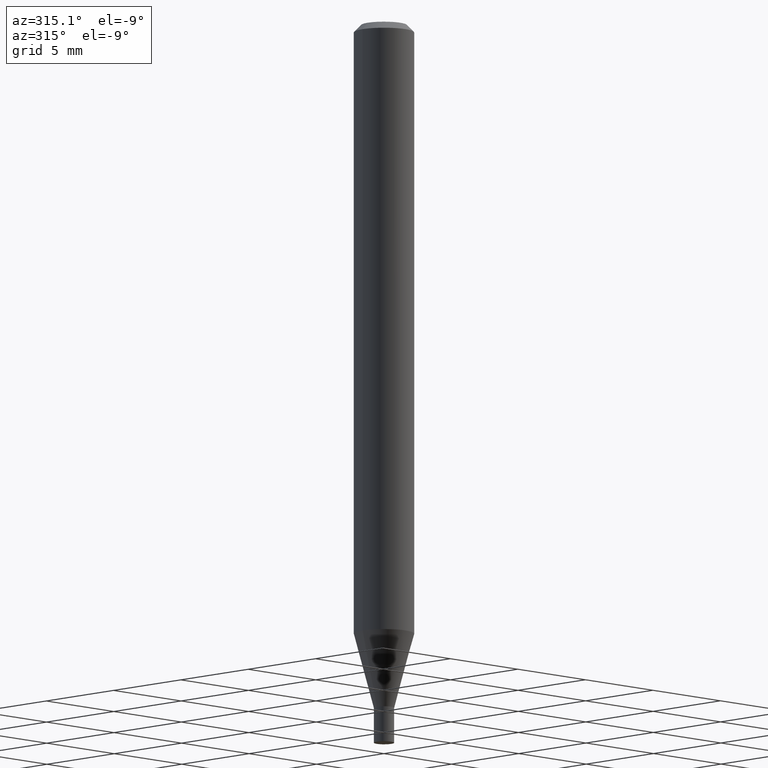
[diagram: clean part render]
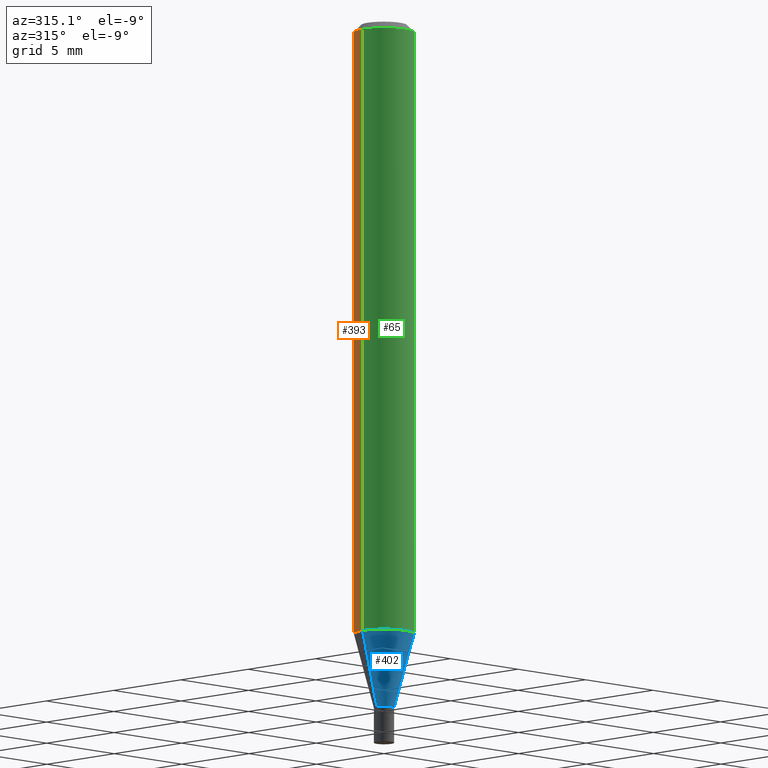
[diagram: same view with three faces highlighted in distinct colors, each labeled with its STEP entity id]
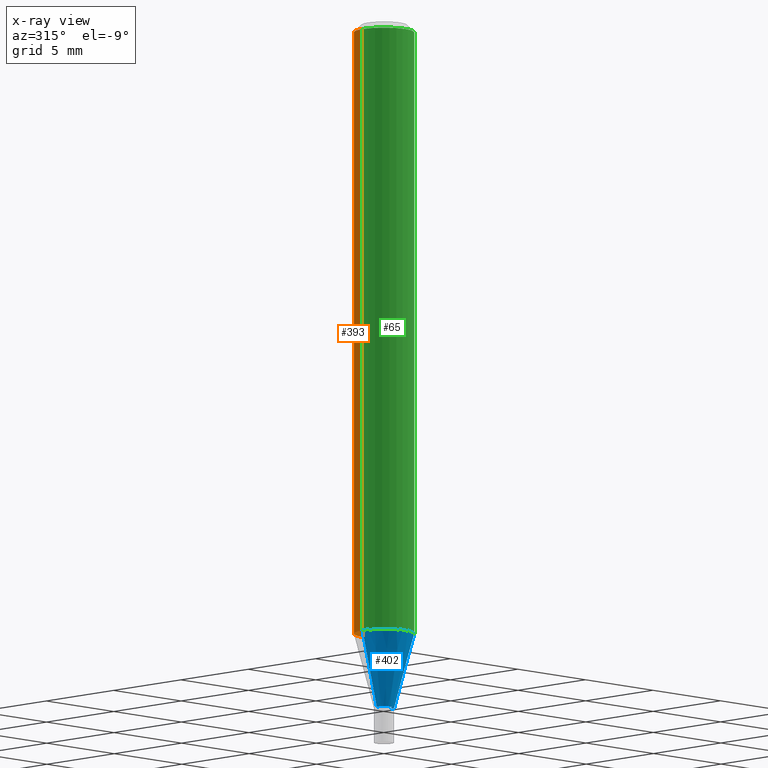
[diagram: x-ray of the same camera — body ghosted, the three highlighted faces saturated]
A machine part, auxiliary view with three faces highlighted in distinct colors.
The next image is the same camera in x-ray (body ghosted, the three faces saturated) — at least one of them is partly hidden behind the body in this view.
Their STEP definitions:

[orange] entity #393 — the highlighted cylindrical surface (edge-blend (fillet) strip) has radius 1.5875 mm, axis along (-0, 0, 1).
#30 = ORIENTED_EDGE ( 'NONE', *, *, #387, .T. ) ;
#49 = EDGE_CURVE ( 'NONE', #377, #144, #199, .T. ) ;
#68 = AXIS2_PLACEMENT_3D ( 'NONE', #417, #153, #302 ) ;
#89 = DIRECTION ( 'NONE',  ( 1.000000000000000000, -6.982962677686262766E-15, 0.000000000000000000 ) ) ;
#111 = DIRECTION ( 'NONE',  ( -2.445468806185136877E-29, 3.491481338843145188E-15, 1.000000000000000000 ) ) ;
#136 = CARTESIAN_POINT ( 'NONE',  ( 0.06250000000000000000, -4.364351673553916694E-16, 3.047610484872459871E-30 ) ) ;
#144 = VERTEX_POINT ( 'NONE', #446 ) ;
#153 = DIRECTION ( 'NONE',  ( -2.445468806185136597E-29, 3.491481338843145583E-15, 1.000000000000000000 ) ) ;
#157 = FACE_OUTER_BOUND ( 'NONE', #394, .T. ) ;
#160 = VERTEX_POINT ( 'NONE', #205 ) ;
#162 = DIRECTION ( 'NONE',  ( -2.445468806185136877E-29, 3.491481338843145188E-15, 1.000000000000000000 ) ) ;
#170 = ORIENTED_EDGE ( 'NONE', *, *, #235, .F. ) ;
#186 = VERTEX_POINT ( 'NONE', #202 ) ;
#190 = CYLINDRICAL_SURFACE ( 'NONE', #269, 0.06250000000000000000 ) ;
#192 = DIRECTION ( 'NONE',  ( -2.445468806185136597E-29, 3.491481338843145583E-15, 1.000000000000000000 ) ) ;
#199 = LINE ( 'NONE', #343, #406 ) ;
#202 = CARTESIAN_POINT ( 'NONE',  ( 0.06250000000000000000, -4.888073874380388472E-16, -0.01499999999999999944 ) ) ;
#203 = AXIS2_PLACEMENT_3D ( 'NONE', #264, #225, #89 ) ;
#204 = CIRCLE ( 'NONE', #68, 0.06250000000000000000 ) ;
#205 = CARTESIAN_POINT ( 'NONE',  ( 0.06250000000000000000, -4.878018029249550992E-15, -1.272119891485891996 ) ) ;
#225 = DIRECTION ( 'NONE',  ( -2.445468806185136597E-29, 3.491481338843145583E-15, 1.000000000000000000 ) ) ;
#230 = CARTESIAN_POINT ( 'NONE',  ( 0.000000000000000000, 0.000000000000000000, 0.000000000000000000 ) ) ;
#235 = EDGE_CURVE ( 'NONE', #160, #186, #407, .T. ) ;
#249 = CIRCLE ( 'NONE', #203, 0.06250000000000000000 ) ;
#264 = CARTESIAN_POINT ( 'NONE',  ( 3.110929512356370285E-29, -4.441582861894159323E-15, -1.272119891485891996 ) ) ;
#269 = AXIS2_PLACEMENT_3D ( 'NONE', #230, #192, #414 ) ;
#299 = CARTESIAN_POINT ( 'NONE',  ( -0.06250000000000000000, -3.997493652044096706E-15, -1.272119891485891996 ) ) ;
#301 = ORIENTED_EDGE ( 'NONE', *, *, #49, .T. ) ;
#302 = DIRECTION ( 'NONE',  ( 1.000000000000000000, -6.982962677686266711E-15, 0.000000000000000000 ) ) ;
#343 = CARTESIAN_POINT ( 'NONE',  ( -0.06250000000000000000, 4.440892098500626162E-16, -3.074334431409316114E-30 ) ) ;
#371 = VECTOR ( 'NONE', #111, 39.37007874015748143 ) ;
#377 = VERTEX_POINT ( 'NONE', #299 ) ;
#387 = EDGE_CURVE ( 'NONE', #160, #377, #249, .T. ) ;
#393 = ADVANCED_FACE ( 'NONE', ( #157 ), #190, .T. ) ;
#394 = EDGE_LOOP ( 'NONE', ( #30, #301, #399, #170 ) ) ;
#399 = ORIENTED_EDGE ( 'NONE', *, *, #452, .F. ) ;
#406 = VECTOR ( 'NONE', #162, 39.37007874015748143 ) ;
#407 = LINE ( 'NONE', #136, #371 ) ;
#414 = DIRECTION ( 'NONE',  ( 1.000000000000000000, -6.982962677686266711E-15, 4.876176775795935793E-29 ) ) ;
#417 = CARTESIAN_POINT ( 'NONE',  ( 3.668203209277705088E-31, -5.237222008264718399E-17, -0.01499999999999999944 ) ) ;
#446 = CARTESIAN_POINT ( 'NONE',  ( -0.06250000000000000000, -1.802888331138340782E-15, -0.01499999999999999944 ) ) ;
#452 = EDGE_CURVE ( 'NONE', #186, #144, #204, .T. ) ;

[blue] entity #402 — the highlighted conical surface has half-angle 15 deg.
#4 = ORIENTED_EDGE ( 'NONE', *, *, #279, .F. ) ;
#5 = CARTESIAN_POINT ( 'NONE',  ( -0.02099999999999992498, -4.415311774031822362E-15, -1.427000000000000046 ) ) ;
#6 = AXIS2_PLACEMENT_3D ( 'NONE', #375, #384, #119 ) ;
#11 = VERTEX_POINT ( 'NONE', #418 ) ;
#16 = LINE ( 'NONE', #212, #347 ) ;
#28 = EDGE_CURVE ( 'NONE', #223, #11, #66, .T. ) ;
#34 = CARTESIAN_POINT ( 'NONE',  ( 3.489683986426190072E-29, -4.982343870529169189E-15, -1.427000000000000046 ) ) ;
#40 = LINE ( 'NONE', #317, #140 ) ;
#66 = CIRCLE ( 'NONE', #165, 0.02099999999999992498 ) ;
#85 = FACE_OUTER_BOUND ( 'NONE', #125, .T. ) ;
#94 = CONICAL_SURFACE ( 'NONE', #6, 0.02099999999999992498, 0.2617993877991504625 ) ;
#95 = AXIS2_PLACEMENT_3D ( 'NONE', #313, #169, #437 ) ;
#99 = ORIENTED_EDGE ( 'NONE', *, *, #216, .T. ) ;
#119 = DIRECTION ( 'NONE',  ( 1.000000000000000000, -6.982962677686265922E-15, 0.000000000000000000 ) ) ;
#125 = EDGE_LOOP ( 'NONE', ( #4, #431, #99, #187 ) ) ;
#140 = VECTOR ( 'NONE', #277, 39.37007874015748854 ) ;
#160 = VERTEX_POINT ( 'NONE', #205 ) ;
#161 = EDGE_CURVE ( 'NONE', #377, #160, #318, .T. ) ;
#165 = AXIS2_PLACEMENT_3D ( 'NONE', #34, #352, #461 ) ;
#169 = DIRECTION ( 'NONE',  ( -2.445468806185136597E-29, 3.491481338843145583E-15, 1.000000000000000000 ) ) ;
#187 = ORIENTED_EDGE ( 'NONE', *, *, #161, .F. ) ;
#205 = CARTESIAN_POINT ( 'NONE',  ( 0.06250000000000000000, -4.878018029249550992E-15, -1.272119891485891996 ) ) ;
#212 = CARTESIAN_POINT ( 'NONE',  ( -0.02099999999999992498, -4.833129896019548018E-15, -1.427000000000000046 ) ) ;
#216 = EDGE_CURVE ( 'NONE', #11, #160, #40, .T. ) ;
#223 = VERTEX_POINT ( 'NONE', #5 ) ;
#277 = DIRECTION ( 'NONE',  ( 0.2588190451025217387, 1.565188264969619207E-15, 0.9659258262890679791 ) ) ;
#279 = EDGE_CURVE ( 'NONE', #223, #377, #16, .T. ) ;
#290 = DIRECTION ( 'NONE',  ( -0.2588190451025217387, 5.211531920934551042E-15, 0.9659258262890679791 ) ) ;
#299 = CARTESIAN_POINT ( 'NONE',  ( -0.06250000000000000000, -3.997493652044096706E-15, -1.272119891485891996 ) ) ;
#313 = CARTESIAN_POINT ( 'NONE',  ( 3.110929512356370285E-29, -4.441582861894159323E-15, -1.272119891485891996 ) ) ;
#317 = CARTESIAN_POINT ( 'NONE',  ( 0.02099999999999992498, -5.128986086760580222E-15, -1.427000000000000046 ) ) ;
#318 = CIRCLE ( 'NONE', #95, 0.06250000000000000000 ) ;
#347 = VECTOR ( 'NONE', #290, 39.37007874015748854 ) ;
#352 = DIRECTION ( 'NONE',  ( -2.445468806185136597E-29, 3.491481338843145583E-15, 1.000000000000000000 ) ) ;
#375 = CARTESIAN_POINT ( 'NONE',  ( 3.489683986426190072E-29, -4.982343870529169189E-15, -1.427000000000000046 ) ) ;
#377 = VERTEX_POINT ( 'NONE', #299 ) ;
#384 = DIRECTION ( 'NONE',  ( -2.445468806185136597E-29, 3.491481338843145583E-15, 1.000000000000000000 ) ) ;
#402 = ADVANCED_FACE ( 'NONE', ( #85 ), #94, .T. ) ;
#418 = CARTESIAN_POINT ( 'NONE',  ( 0.02099999999999992498, -5.128986086760580222E-15, -1.427000000000000046 ) ) ;
#431 = ORIENTED_EDGE ( 'NONE', *, *, #28, .T. ) ;
#437 = DIRECTION ( 'NONE',  ( 1.000000000000000000, -6.982962677686262766E-15, 0.000000000000000000 ) ) ;
#461 = DIRECTION ( 'NONE',  ( 1.000000000000000000, -6.982962677686265922E-15, 0.000000000000000000 ) ) ;

[green] entity #65 — the highlighted cylindrical surface (edge-blend (fillet) strip) has radius 1.5875 mm, axis along (-0, 0, 1).
#39 = DIRECTION ( 'NONE',  ( -2.445468806185136597E-29, 3.491481338843145583E-15, 1.000000000000000000 ) ) ;
#49 = EDGE_CURVE ( 'NONE', #377, #144, #199, .T. ) ;
#57 = EDGE_LOOP ( 'NONE', ( #152, #79, #378, #217 ) ) ;
#64 = CARTESIAN_POINT ( 'NONE',  ( 0.000000000000000000, 0.000000000000000000, 0.000000000000000000 ) ) ;
#65 = ADVANCED_FACE ( 'NONE', ( #460 ), #97, .T. ) ;
#79 = ORIENTED_EDGE ( 'NONE', *, *, #161, .T. ) ;
#82 = AXIS2_PLACEMENT_3D ( 'NONE', #64, #39, #245 ) ;
#95 = AXIS2_PLACEMENT_3D ( 'NONE', #313, #169, #437 ) ;
#97 = CYLINDRICAL_SURFACE ( 'NONE', #82, 0.06250000000000000000 ) ;
#109 = EDGE_CURVE ( 'NONE', #144, #186, #291, .T. ) ;
#111 = DIRECTION ( 'NONE',  ( -2.445468806185136877E-29, 3.491481338843145188E-15, 1.000000000000000000 ) ) ;
#136 = CARTESIAN_POINT ( 'NONE',  ( 0.06250000000000000000, -4.364351673553916694E-16, 3.047610484872459871E-30 ) ) ;
#144 = VERTEX_POINT ( 'NONE', #446 ) ;
#152 = ORIENTED_EDGE ( 'NONE', *, *, #49, .F. ) ;
#160 = VERTEX_POINT ( 'NONE', #205 ) ;
#161 = EDGE_CURVE ( 'NONE', #377, #160, #318, .T. ) ;
#162 = DIRECTION ( 'NONE',  ( -2.445468806185136877E-29, 3.491481338843145188E-15, 1.000000000000000000 ) ) ;
#169 = DIRECTION ( 'NONE',  ( -2.445468806185136597E-29, 3.491481338843145583E-15, 1.000000000000000000 ) ) ;
#174 = CARTESIAN_POINT ( 'NONE',  ( 3.668203209277705088E-31, -5.237222008264718399E-17, -0.01499999999999999944 ) ) ;
#186 = VERTEX_POINT ( 'NONE', #202 ) ;
#199 = LINE ( 'NONE', #343, #406 ) ;
#202 = CARTESIAN_POINT ( 'NONE',  ( 0.06250000000000000000, -4.888073874380388472E-16, -0.01499999999999999944 ) ) ;
#205 = CARTESIAN_POINT ( 'NONE',  ( 0.06250000000000000000, -4.878018029249550992E-15, -1.272119891485891996 ) ) ;
#211 = DIRECTION ( 'NONE',  ( -2.445468806185136597E-29, 3.491481338843145583E-15, 1.000000000000000000 ) ) ;
#217 = ORIENTED_EDGE ( 'NONE', *, *, #109, .F. ) ;
#235 = EDGE_CURVE ( 'NONE', #160, #186, #407, .T. ) ;
#245 = DIRECTION ( 'NONE',  ( 1.000000000000000000, -6.982962677686266711E-15, 4.876176775795935793E-29 ) ) ;
#291 = CIRCLE ( 'NONE', #339, 0.06250000000000000000 ) ;
#299 = CARTESIAN_POINT ( 'NONE',  ( -0.06250000000000000000, -3.997493652044096706E-15, -1.272119891485891996 ) ) ;
#313 = CARTESIAN_POINT ( 'NONE',  ( 3.110929512356370285E-29, -4.441582861894159323E-15, -1.272119891485891996 ) ) ;
#318 = CIRCLE ( 'NONE', #95, 0.06250000000000000000 ) ;
#339 = AXIS2_PLACEMENT_3D ( 'NONE', #174, #211, #382 ) ;
#343 = CARTESIAN_POINT ( 'NONE',  ( -0.06250000000000000000, 4.440892098500626162E-16, -3.074334431409316114E-30 ) ) ;
#371 = VECTOR ( 'NONE', #111, 39.37007874015748143 ) ;
#377 = VERTEX_POINT ( 'NONE', #299 ) ;
#378 = ORIENTED_EDGE ( 'NONE', *, *, #235, .T. ) ;
#382 = DIRECTION ( 'NONE',  ( 1.000000000000000000, -6.982962677686266711E-15, 0.000000000000000000 ) ) ;
#406 = VECTOR ( 'NONE', #162, 39.37007874015748143 ) ;
#407 = LINE ( 'NONE', #136, #371 ) ;
#437 = DIRECTION ( 'NONE',  ( 1.000000000000000000, -6.982962677686262766E-15, 0.000000000000000000 ) ) ;
#446 = CARTESIAN_POINT ( 'NONE',  ( -0.06250000000000000000, -1.802888331138340782E-15, -0.01499999999999999944 ) ) ;
#460 = FACE_OUTER_BOUND ( 'NONE', #57, .T. ) ;